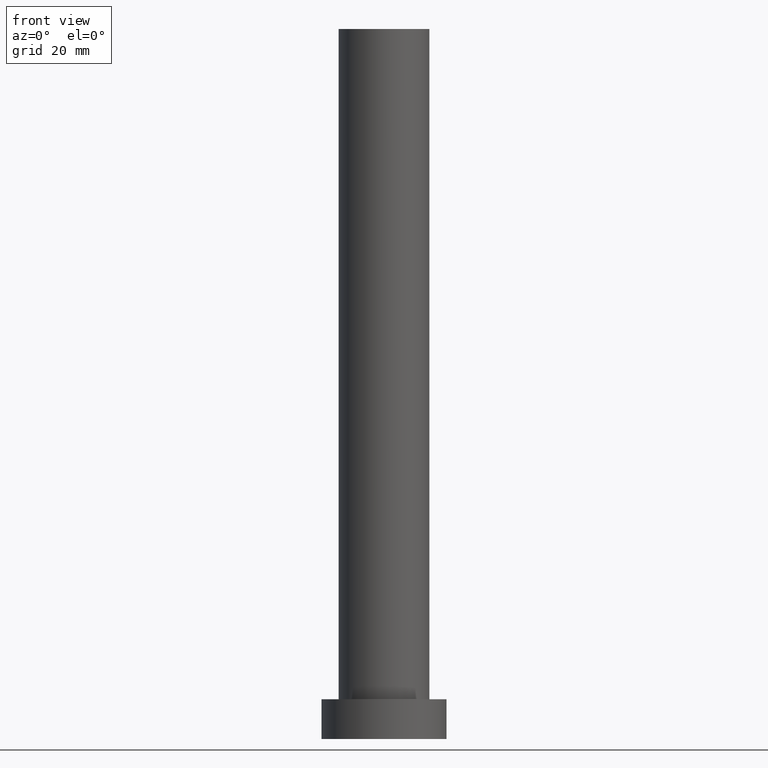
[diagram: clean part render]
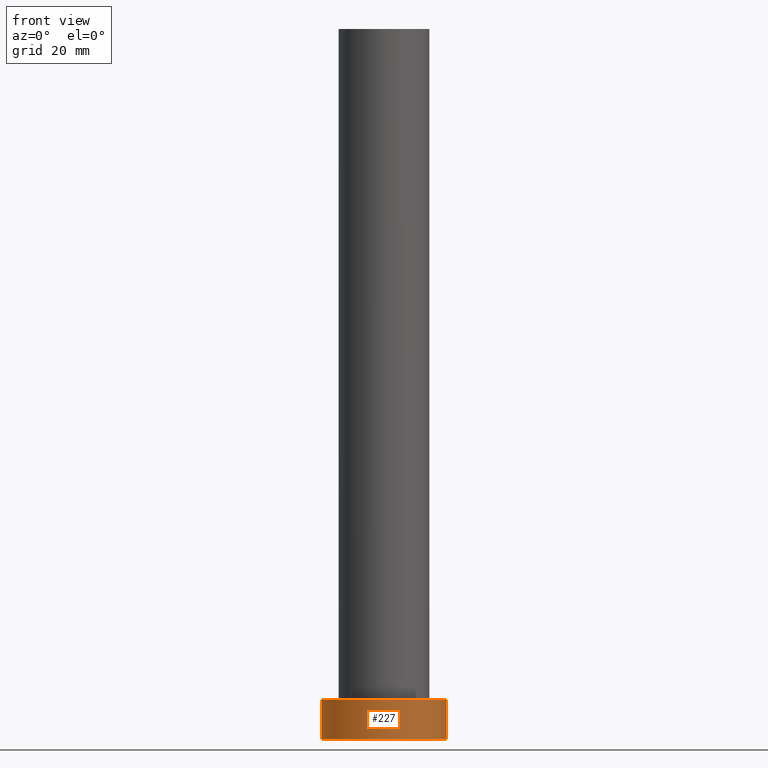
[diagram: same view with one face highlighted and labeled with its STEP entity id]
A machine part, front view. The second image highlights one B-rep face of the part: STEP entity #227.
In plain terms, the highlighted cylindrical surface (partial cylindrical patch) has radius 11 mm, axis along (-0, -0, -1).
Its self-contained STEP definition (entity closure, byte-faithful):
#8 = DIRECTION ( 'NONE',  ( -1.000000000000000000, 0.000000000000000000, 0.000000000000000000 ) ) ;
#22 = DIRECTION ( 'NONE',  ( 1.000000000000000000, 0.000000000000000000, 0.000000000000000000 ) ) ;
#32 = DIRECTION ( 'NONE',  ( 1.000000000000000000, 0.000000000000000000, 0.000000000000000000 ) ) ;
#35 = EDGE_CURVE ( 'NONE', #44, #186, #118, .T. ) ;
#44 = VERTEX_POINT ( 'NONE', #113 ) ;
#46 = ORIENTED_EDGE ( 'NONE', *, *, #35, .F. ) ;
#49 = ORIENTED_EDGE ( 'NONE', *, *, #74, .F. ) ;
#50 = CARTESIAN_POINT ( 'NONE',  ( 11.00000000000000000, 1.347111479062088405E-15, 0.000000000000000000 ) ) ;
#53 = LINE ( 'NONE', #73, #201 ) ;
#68 = CARTESIAN_POINT ( 'NONE',  ( 0.000000000000000000, 0.000000000000000000, 7.000000000000000000 ) ) ;
#73 = CARTESIAN_POINT ( 'NONE',  ( 11.00000000000000000, 1.347111479062088405E-15, 7.000000000000000000 ) ) ;
#74 = EDGE_CURVE ( 'NONE', #186, #86, #53, .T. ) ;
#84 = AXIS2_PLACEMENT_3D ( 'NONE', #205, #211, #8 ) ;
#86 = VERTEX_POINT ( 'NONE', #50 ) ;
#87 = LINE ( 'NONE', #140, #180 ) ;
#90 = EDGE_LOOP ( 'NONE', ( #49, #46, #208, #242 ) ) ;
#113 = CARTESIAN_POINT ( 'NONE',  ( -11.00000000000000000, 0.000000000000000000, 7.000000000000000000 ) ) ;
#117 = CARTESIAN_POINT ( 'NONE',  ( -11.00000000000000000, 0.000000000000000000, 0.000000000000000000 ) ) ;
#118 = CIRCLE ( 'NONE', #197, 11.00000000000000000 ) ;
#120 = CARTESIAN_POINT ( 'NONE',  ( 11.00000000000000000, 1.347111479062088405E-15, 7.000000000000000000 ) ) ;
#129 = EDGE_CURVE ( 'NONE', #245, #86, #139, .T. ) ;
#139 = CIRCLE ( 'NONE', #218, 11.00000000000000000 ) ;
#140 = CARTESIAN_POINT ( 'NONE',  ( -11.00000000000000000, 0.000000000000000000, 7.000000000000000000 ) ) ;
#148 = CARTESIAN_POINT ( 'NONE',  ( 0.000000000000000000, 0.000000000000000000, 0.000000000000000000 ) ) ;
#156 = DIRECTION ( 'NONE',  ( -0.000000000000000000, -0.000000000000000000, -1.000000000000000000 ) ) ;
#175 = DIRECTION ( 'NONE',  ( -0.000000000000000000, -0.000000000000000000, -1.000000000000000000 ) ) ;
#180 = VECTOR ( 'NONE', #156, 1000.000000000000000 ) ;
#186 = VERTEX_POINT ( 'NONE', #120 ) ;
#197 = AXIS2_PLACEMENT_3D ( 'NONE', #68, #209, #22 ) ;
#201 = VECTOR ( 'NONE', #175, 1000.000000000000000 ) ;
#205 = CARTESIAN_POINT ( 'NONE',  ( 0.000000000000000000, 0.000000000000000000, 7.000000000000000000 ) ) ;
#207 = FACE_OUTER_BOUND ( 'NONE', #90, .T. ) ;
#208 = ORIENTED_EDGE ( 'NONE', *, *, #221, .T. ) ;
#209 = DIRECTION ( 'NONE',  ( 0.000000000000000000, 0.000000000000000000, 1.000000000000000000 ) ) ;
#211 = DIRECTION ( 'NONE',  ( -0.000000000000000000, -0.000000000000000000, -1.000000000000000000 ) ) ;
#218 = AXIS2_PLACEMENT_3D ( 'NONE', #148, #249, #32 ) ;
#221 = EDGE_CURVE ( 'NONE', #44, #245, #87, .T. ) ;
#227 = ADVANCED_FACE ( 'NONE', ( #207 ), #229, .T. ) ;
#229 = CYLINDRICAL_SURFACE ( 'NONE', #84, 11.00000000000000000 ) ;
#242 = ORIENTED_EDGE ( 'NONE', *, *, #129, .T. ) ;
#245 = VERTEX_POINT ( 'NONE', #117 ) ;
#249 = DIRECTION ( 'NONE',  ( 0.000000000000000000, 0.000000000000000000, 1.000000000000000000 ) ) ;